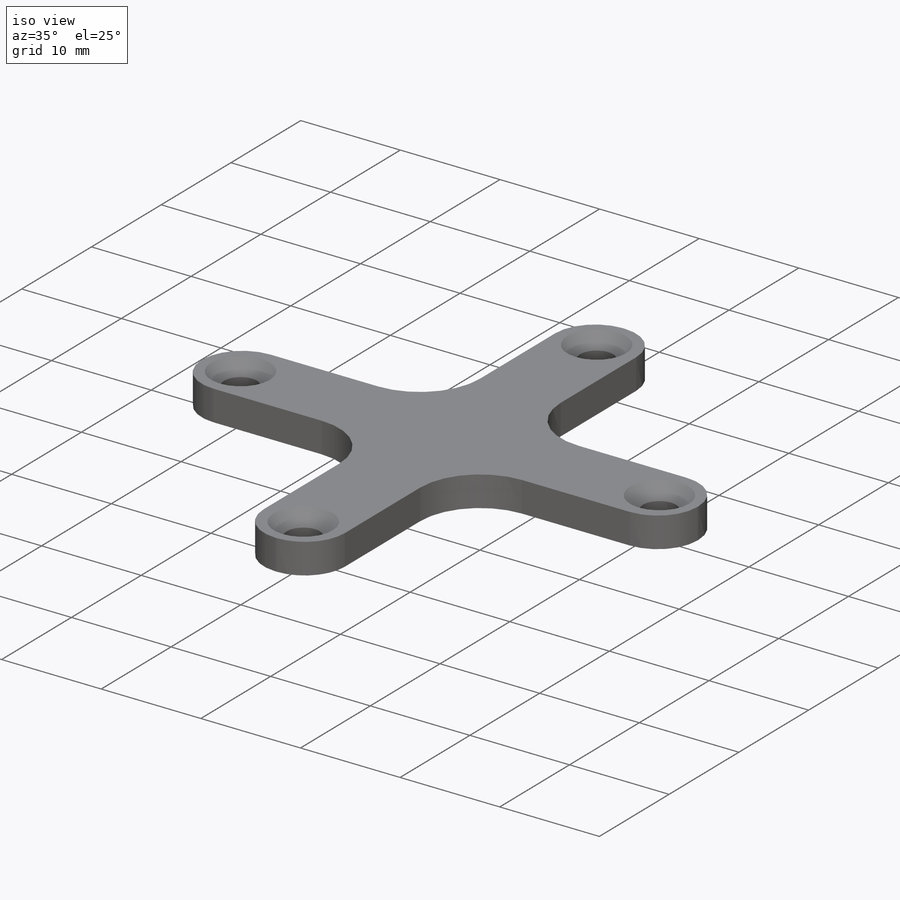
[diagram: iso view]
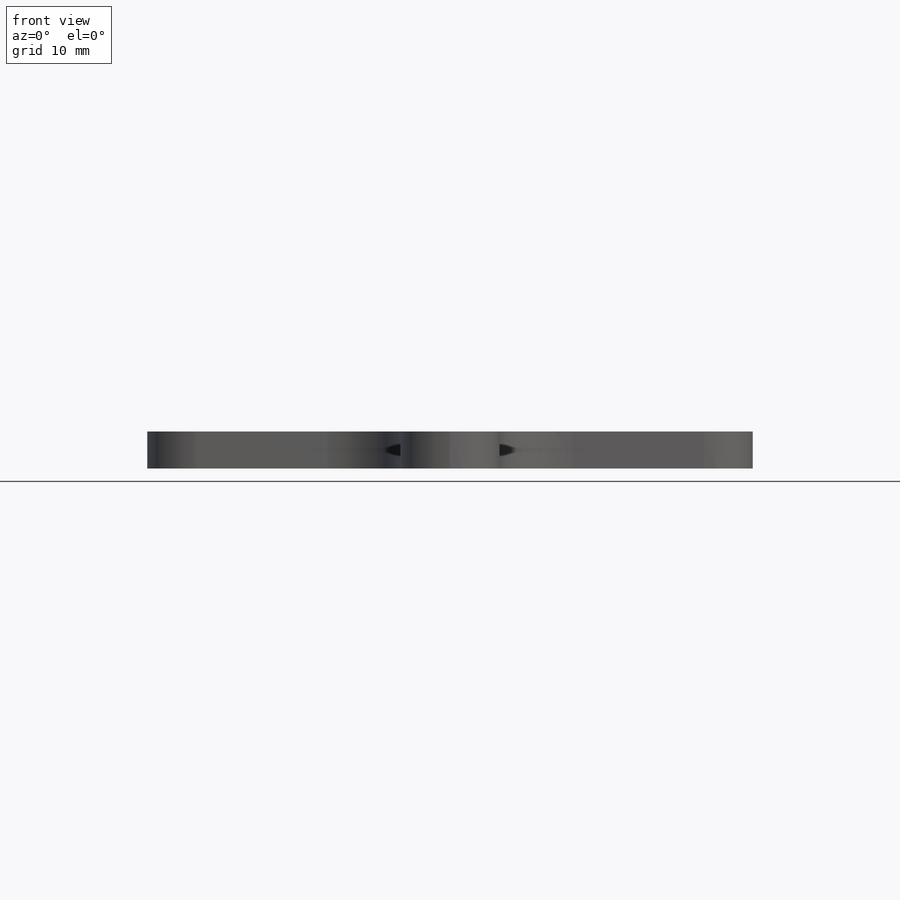
[diagram: front view]
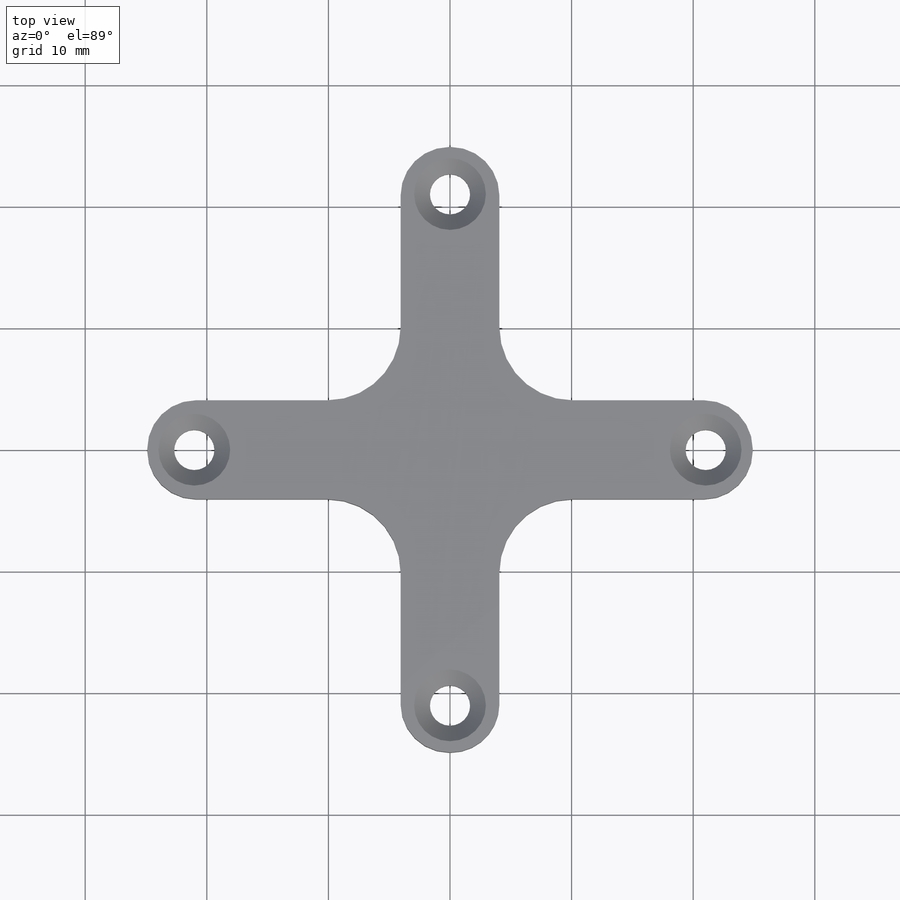
[diagram: top view]
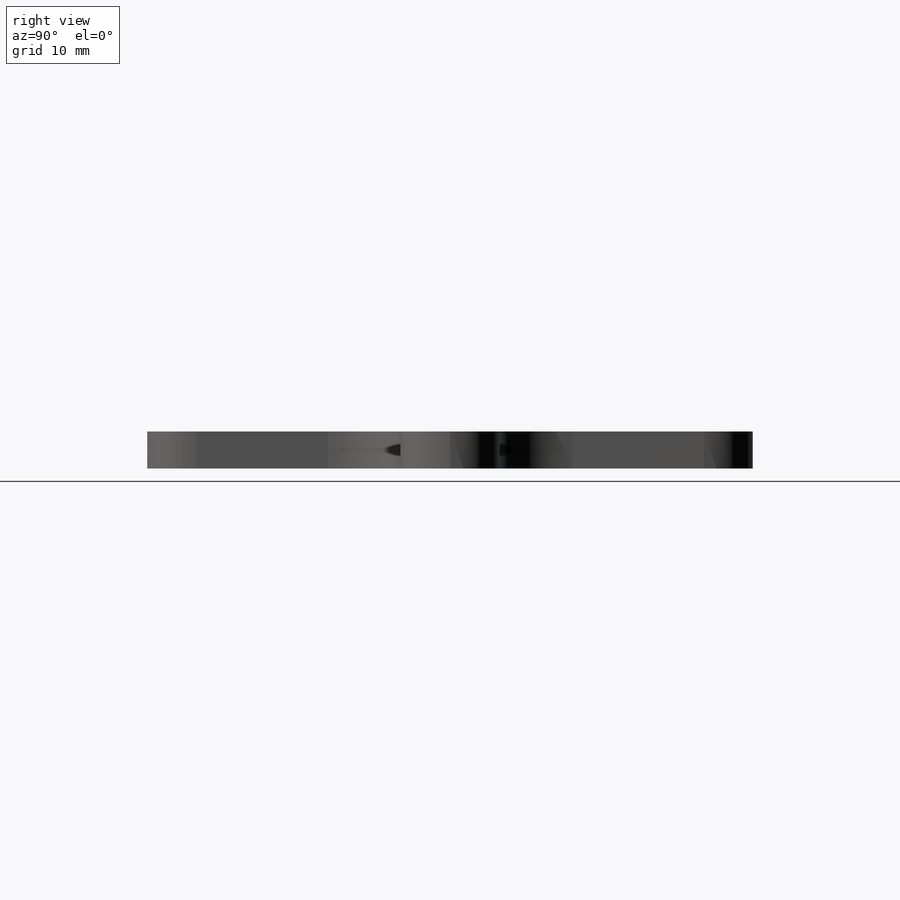
[diagram: right view]
SOLIDWORKS PART (.sldprt)
format: sldprt  version: not decoded by parser v0  size: 266,752 bytes
history: native  units: mm
features: fillet x2, material x1, sketch x1, extrude x1, chamfer x1 (+11 scaffold rows collapsed)
feature tree (17):
  scaffold x11  (default folders/planes/origin — collapsed)
  material  "6061 Alloy"
  sketch  "Sketch1"  dims[c1.D3=3.302mm c1.D4=3.302mm c1.D1=8.128mm c1.D2=25.019mm c2.D4=19.685mm c2.D5=25.019mm c3.D5=45.0deg c4.D5=50.038mm c4.D4=19.685mm c4.D2=42.05mm c5.D4=3.87mm]
  extrude  "Boss-Extrude1"  Depth=3.048mm
  fillet  "Fillet3"  Radius=4mm
  chamfer  "Chamfer1"  Distance=1.3mm Angle=45deg
  fillet  "Fillet4"  Radius=6mm
decode coverage: 5 of 5 modeling features carry decoded parameters
note: suppression state not decoded; provenance and decode notes live in map.json
